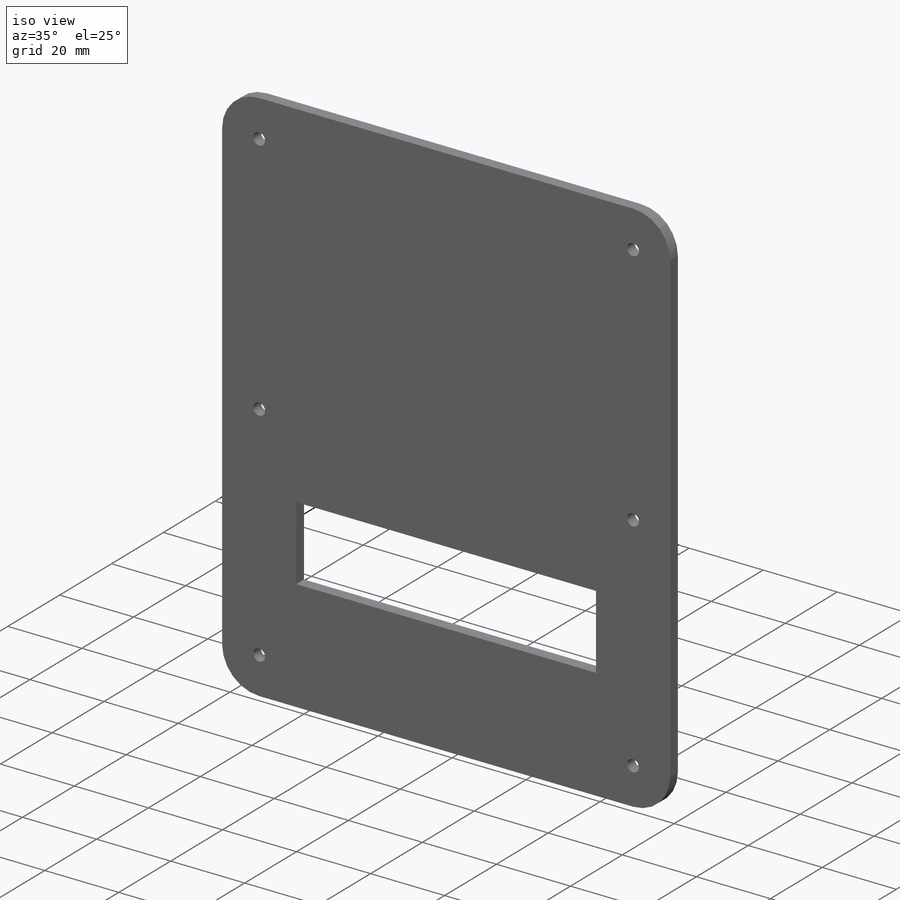
[diagram: iso view]
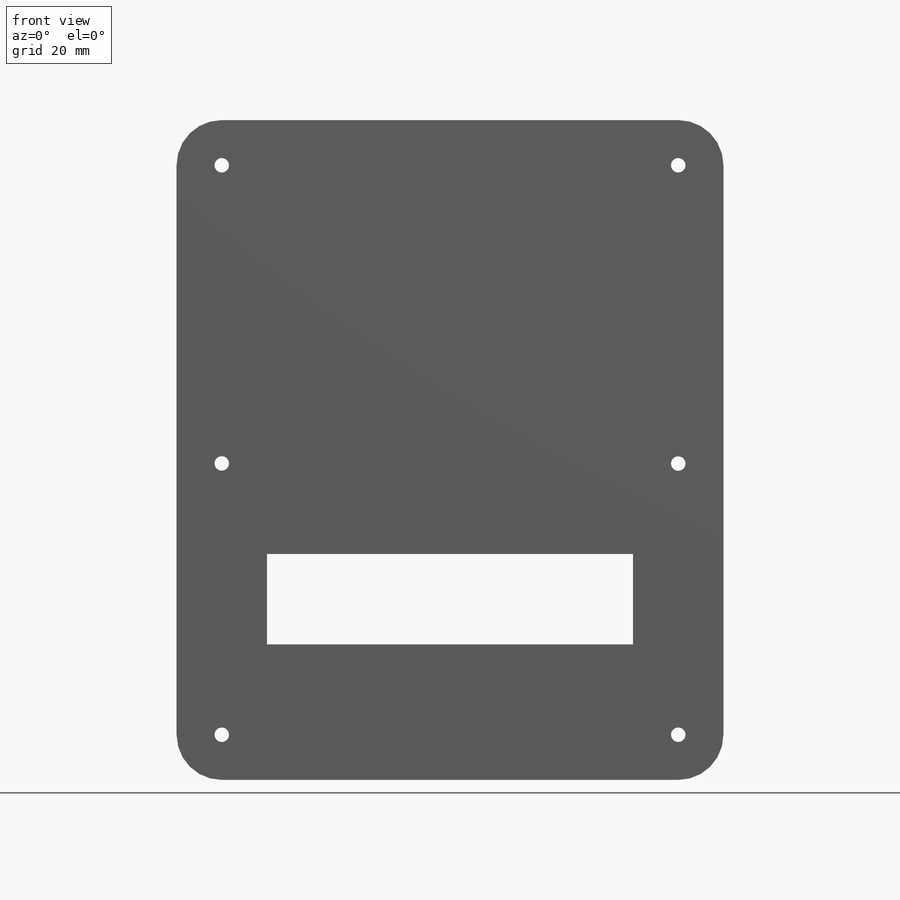
[diagram: front view]
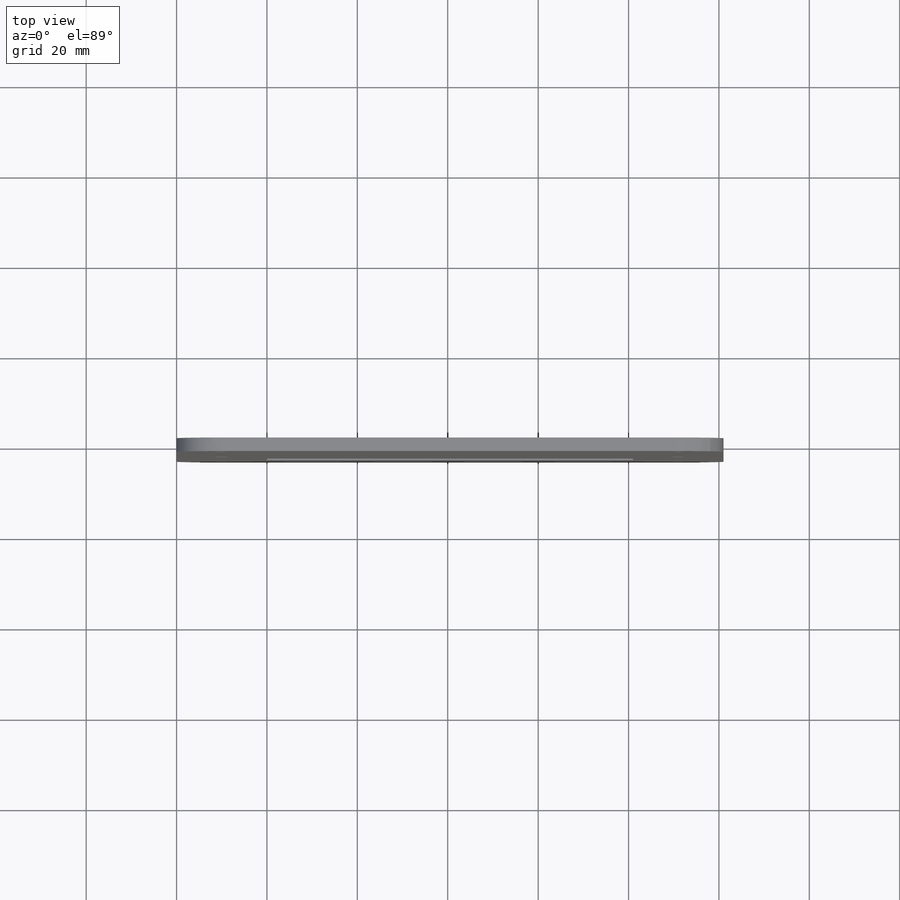
[diagram: top view]
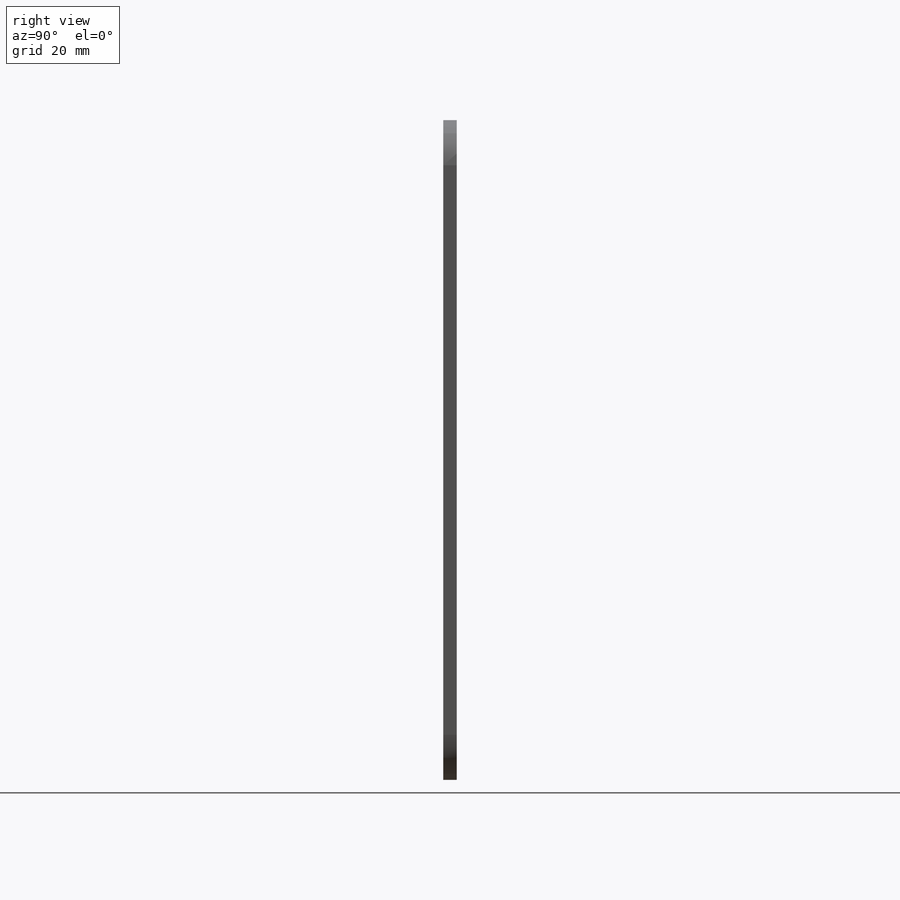
[diagram: right view]
SOLIDWORKS PART (.sldprt)
format: sldprt  version: not decoded by parser v0  size: 203,264 bytes
history: native  units: mm
features: fillet x5, plane x3, cut_extrude x2, material x1, sketch x1, extrude x1 + 2 further entries (+8 scaffold rows collapsed)
feature tree (23):
  scaffold x8  (default folders/planes/origin — collapsed)
  material  "ｱｸﾘﾙ (中-上級の耐衝撃性)"
  "ｻｰﾌｪｽ ﾎﾞﾃﾞｨ"
  "ｿﾘｯﾄﾞ ﾎﾞﾃﾞｨ"
  plane  "正面"
  plane  "平面"
  plane  "右側面"
  sketch  "ｽｹｯﾁ1"
  extrude  "ﾎﾞｽ - 押し出し1"  Depth=3mm
  fillet  "ﾌｨﾚｯﾄ1"  Radius=10mm
  fillet  "ｽｹｯﾁ2"  Radius=5.079617mm
  cut_extrude  "ｶｯﾄ - 押し出し1"  [1 undecoded]
  fillet  "ｽｹｯﾁ3"  Radius=86mm
  cut_extrude  "ｶｯﾄ - 押し出し2"  Depth=10mm
  fillet  "ﾍﾞﾝﾄﾞ-ﾗｲﾝ1"  [1 undecoded]
  fillet  "境界ﾎﾞｯｸｽ1"  [1 undecoded]
decode coverage: 5 of 9 modeling features carry decoded parameters; 2 rows unclassified (native names shown)
note: 3 parameter values undecoded
summary: no parameter record found for 3 features
note: suppression state not decoded; provenance and decode notes live in map.json
